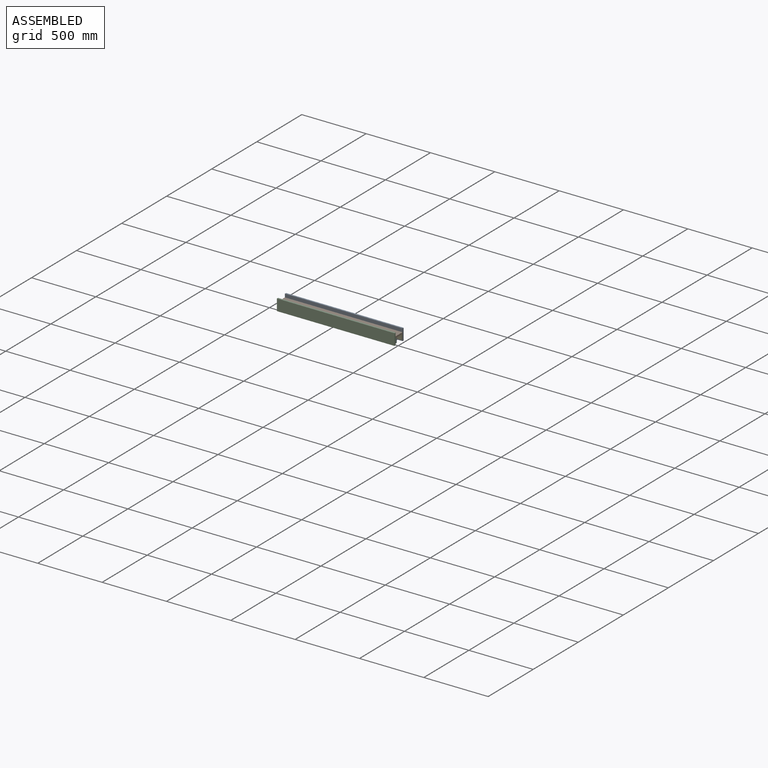
[diagram: assembled view]
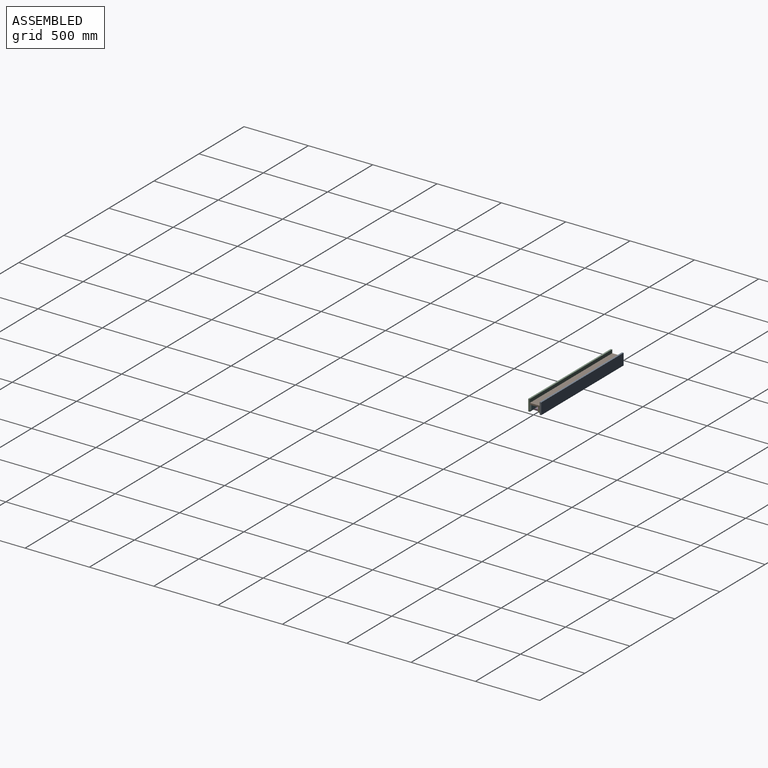
[diagram: assembled view, second angle]
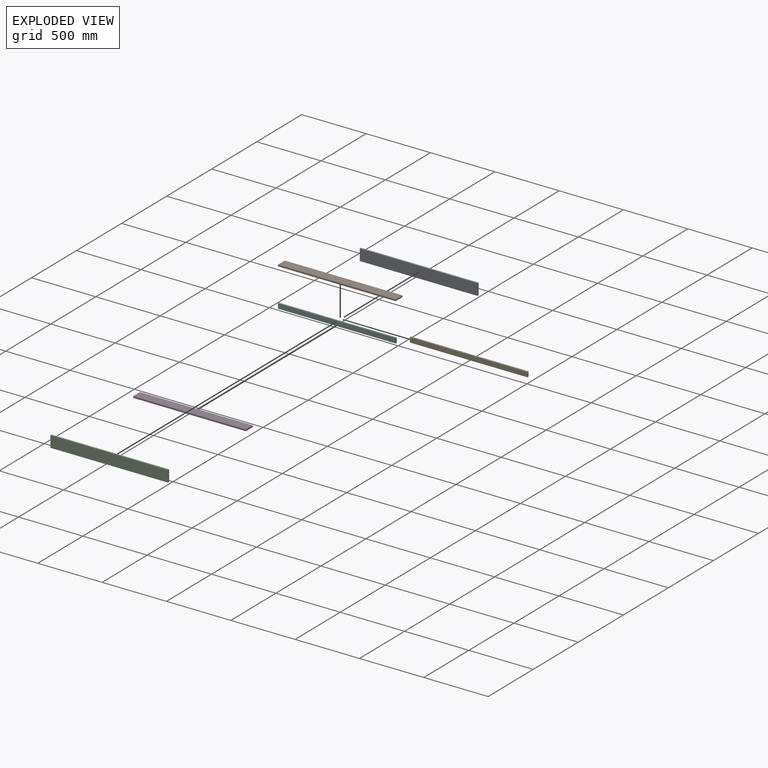
[diagram: exploded view]
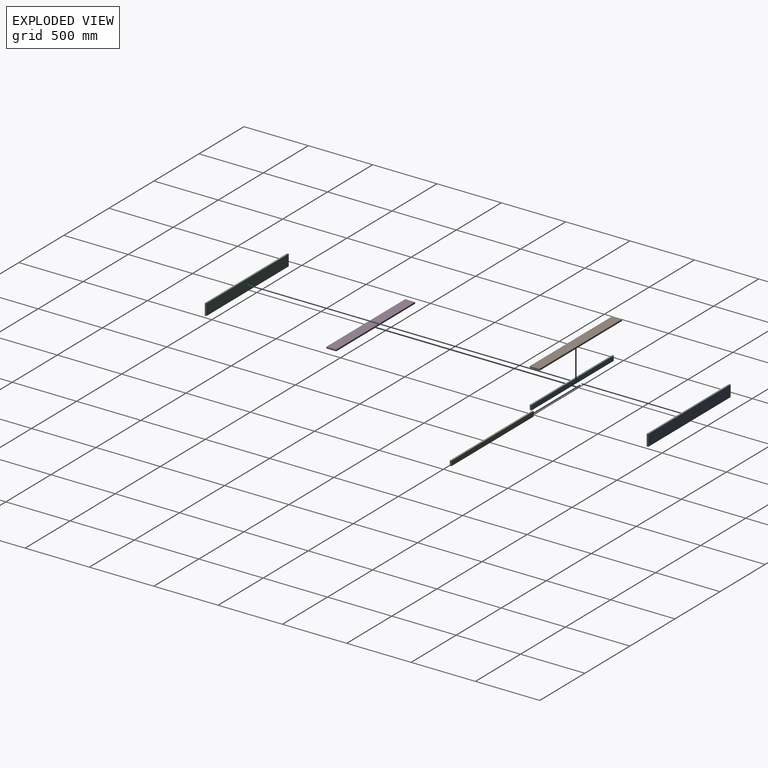
[diagram: exploded view, second angle]
ASSEMBLY  parts=6 mates=5
PART A: 6 faces, bbox 914.4x12.3x88.9 mm
  f0: plane 914.4x12.29mm, normal (0,0,1), area 11241.3mm2, adj f1,f3,f4,f5
  f1: plane 914.4x88.9mm, normal (0,-1,0), area 81290.2mm2, adj f0,f2,f4,f5
  f2: plane 914.4x12.29mm, normal (0,0,-1), area 11241.3mm2, adj f1,f3,f4,f5
  f3: plane 914.4x88.9mm, normal (0,1,0), area 81290.2mm2, adj f0,f2,f4,f5
  f4: plane 88.9x12.29mm, normal (-1,0,0), area 1092.9mm2, adj f0,f1,f2,f3
  f5: plane 88.9x12.29mm, normal (1,0,0), area 1092.9mm2, adj f0,f1,f2,f3
PART B: 26 faces, bbox 914.4x76.2x12.3 mm
  f0: plane 914.4x12.29mm, normal (0,-1,0), area 11241.3mm2, adj f1,f3,f4,f5
  f1: plane 914.4x76.2mm, normal (0,0,-1), area 69598.1mm2, adj f0,f2,f4,f5,f6,f8,f10,f12
  f2: plane 914.4x12.29mm, normal (0,1,0), area 11241.3mm2, adj f1,f3,f4,f5
  f3: plane 914.4x76.2mm, normal (0,0,1), area 69474.6mm2, adj f0,f2,f4,f5,f7,f9,f11,f13
  f4: plane 76.2x12.29mm, normal (-1,0,0), area 936.8mm2, adj f0,f1,f2,f3
  f5: plane 76.2x12.29mm, normal (1,0,0), area 936.8mm2, adj f0,f1,f2,f3
  f6: cylinder r=1.59mm len=11.2mm, axis (0,0,1), area 111.7mm2, adj f1,f7
  f7: cone r=1.59mm half-angle=41deg, axis (0,0,1), area 18.8mm2, adj f3,f6
  f8: cylinder r=1.59mm len=11.2mm, axis (0,0,1), area 111.7mm2, adj f1,f9
  f9: cone r=1.59mm half-angle=41deg, axis (0,0,1), area 18.8mm2, adj f3,f8
  f10: cylinder r=1.59mm len=11.2mm, axis (0,0,1), area 111.7mm2, adj f1,f11
  f11: cone r=1.59mm half-angle=41deg, axis (0,0,1), area 18.8mm2, adj f3,f10
  f12: cylinder r=1.59mm len=11.2mm, axis (0,0,1), area 111.7mm2, adj f1,f13
  f13: cone r=1.59mm half-angle=41deg, axis (0,0,1), area 18.8mm2, adj f3,f12
  f14: cylinder r=1.59mm len=11.2mm, axis (0,0,1), area 111.7mm2, adj f1,f15
  f15: cone r=1.59mm half-angle=41deg, axis (0,0,1), area 18.8mm2, adj f3,f14
  f16: cylinder r=1.59mm len=11.2mm, axis (0,0,1), area 111.7mm2, adj f1,f17
  f17: cone r=1.59mm half-angle=41deg, axis (0,0,1), area 18.8mm2, adj f3,f16
  f18: cylinder r=1.59mm len=11.2mm, axis (0,0,1), area 111.7mm2, adj f1,f19
  f19: cone r=1.59mm half-angle=41deg, axis (0,0,1), area 18.8mm2, adj f3,f18
  f20: cylinder r=1.59mm len=11.2mm, axis (0,0,1), area 111.7mm2, adj f1,f21
  f21: cone r=1.59mm half-angle=41deg, axis (0,0,1), area 18.8mm2, adj f3,f20
  f22: cylinder r=1.59mm len=11.2mm, axis (0,0,1), area 111.7mm2, adj f1,f23
  f23: cone r=1.59mm half-angle=41deg, axis (0,0,1), area 18.8mm2, adj f3,f22
  f24: cylinder r=1.59mm len=11.2mm, axis (0,0,1), area 111.7mm2, adj f1,f25
  f25: cone r=1.59mm half-angle=41deg, axis (0,0,1), area 18.8mm2, adj f3,f24
PART C: same geometry as A
PART D: 26 faces, bbox 876.3x76.2x12.3 mm
  f0: plane 876.3x76.2mm, normal (0,0,1), area 66694.9mm2, adj f1,f3,f4,f5,f6,f8,f10,f12
  f1: plane 876.3x12.29mm, normal (0,-1,0), area 10772.9mm2, adj f0,f2,f4,f5
  f2: plane 876.3x76.2mm, normal (0,0,-1), area 66571.4mm2, adj f1,f3,f4,f5,f7,f9,f11,f13
  f3: plane 876.3x12.29mm, normal (0,1,0), area 10772.9mm2, adj f0,f2,f4,f5
  f4: plane 76.2x12.29mm, normal (-1,0,0), area 936.8mm2, adj f0,f1,f2,f3
  f5: plane 76.2x12.29mm, normal (1,0,0), area 936.8mm2, adj f0,f1,f2,f3
  f6: cylinder r=1.59mm len=11.2mm, axis (0,0,-1), area 111.7mm2, adj f0,f7
  f7: cone r=1.59mm half-angle=41deg, axis (0,0,-1), area 18.8mm2, adj f2,f6
  f8: cylinder r=1.59mm len=11.2mm, axis (0,0,-1), area 111.7mm2, adj f0,f9
  f9: cone r=1.59mm half-angle=41deg, axis (0,0,-1), area 18.8mm2, adj f2,f8
  f10: cylinder r=1.59mm len=11.2mm, axis (0,0,-1), area 111.7mm2, adj f0,f11
  f11: cone r=1.59mm half-angle=41deg, axis (0,0,-1), area 18.8mm2, adj f2,f10
  f12: cylinder r=1.59mm len=11.2mm, axis (0,0,-1), area 111.7mm2, adj f0,f13
  f13: cone r=1.59mm half-angle=41deg, axis (0,0,-1), area 18.8mm2, adj f2,f12
  f14: cylinder r=1.59mm len=11.2mm, axis (0,0,-1), area 111.7mm2, adj f0,f15
  f15: cone r=1.59mm half-angle=41deg, axis (0,0,-1), area 18.8mm2, adj f2,f14
  f16: cylinder r=1.59mm len=11.2mm, axis (0,0,-1), area 111.7mm2, adj f0,f17
  f17: cone r=1.59mm half-angle=41deg, axis (0,0,-1), area 18.8mm2, adj f2,f16
  f18: cylinder r=1.59mm len=11.2mm, axis (0,0,-1), area 111.7mm2, adj f0,f19
  f19: cone r=1.59mm half-angle=41deg, axis (0,0,-1), area 18.8mm2, adj f2,f18
  f20: cylinder r=1.59mm len=11.2mm, axis (0,0,-1), area 111.7mm2, adj f0,f21
  f21: cone r=1.59mm half-angle=41deg, axis (0,0,-1), area 18.8mm2, adj f2,f20
  f22: cylinder r=1.59mm len=11.2mm, axis (0,0,-1), area 111.7mm2, adj f0,f23
  f23: cone r=1.59mm half-angle=41deg, axis (0,0,-1), area 18.8mm2, adj f2,f22
  f24: cylinder r=1.59mm len=11.2mm, axis (0,0,-1), area 111.7mm2, adj f0,f25
  f25: cone r=1.59mm half-angle=41deg, axis (0,0,-1), area 18.8mm2, adj f2,f24
PART E: 6 faces, bbox 914.4x12.3x38.1 mm
  f0: plane 914.4x38.1mm, normal (0,-1,0), area 34838.6mm2, adj f1,f3,f4,f5
  f1: plane 914.4x12.29mm, normal (0,0,-1), area 11241.3mm2, adj f0,f2,f4,f5
  f2: plane 914.4x38.1mm, normal (0,1,0), area 34838.6mm2, adj f1,f3,f4,f5
  f3: plane 914.4x12.29mm, normal (0,0,1), area 11241.3mm2, adj f0,f2,f4,f5
  f4: plane 38.1x12.29mm, normal (-1,0,0), area 468.4mm2, adj f0,f1,f2,f3
  f5: plane 38.1x12.29mm, normal (1,0,0), area 468.4mm2, adj f0,f1,f2,f3
PART F: same geometry as E
PLACE A t=(0,131.55,20.87)mm
PLACE B at identity
PLACE C t=(0,43.05,20.87)mm
PLACE D t=(-38.1,0,-1.85)mm
PLACE E t=(0,-27.5,10.1)mm
PLACE F t=(0,-91.41,10.1)mm
MATE planar D.f4 <-> E.f4  axis (-1,0,0) through (-914.4,48.21,14.25)mm
MATE planar F.f4 <-> B.f4  axis (-1,0,0) through (-914.4,-27.99,52.35)mm
MATE planar A.f1 <-> D.f3  axis (0,-1,0) through (-914.4,48.21,1.96)mm
MATE planar C.f3 <-> D.f1  axis (0,1,0) through (-914.4,-27.99,1.96)mm
MATE planar E.f4 <-> B.f4  axis (-1,0,0) through (-914.4,48.21,52.35)mm
